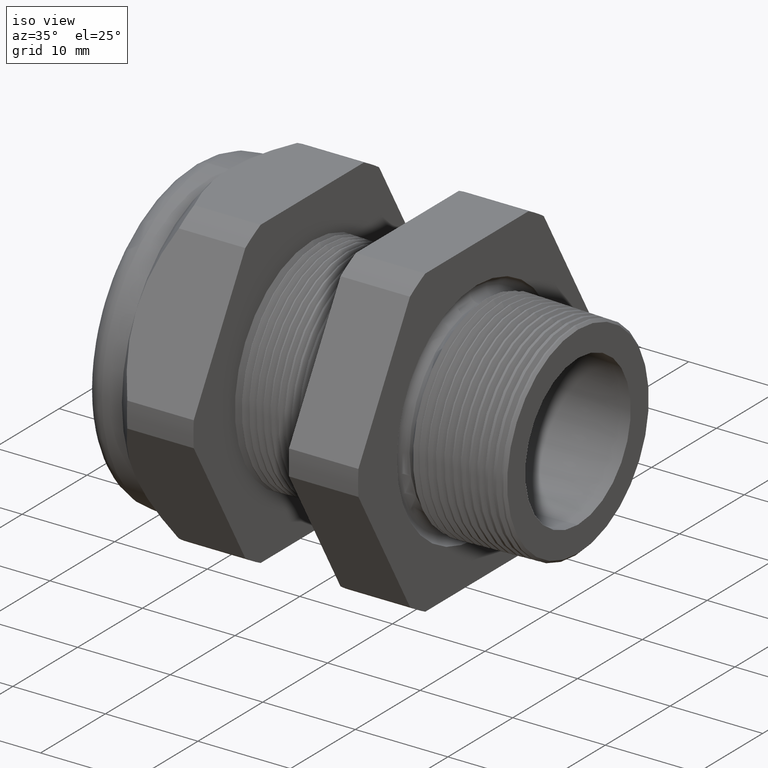
[diagram: clean part render]
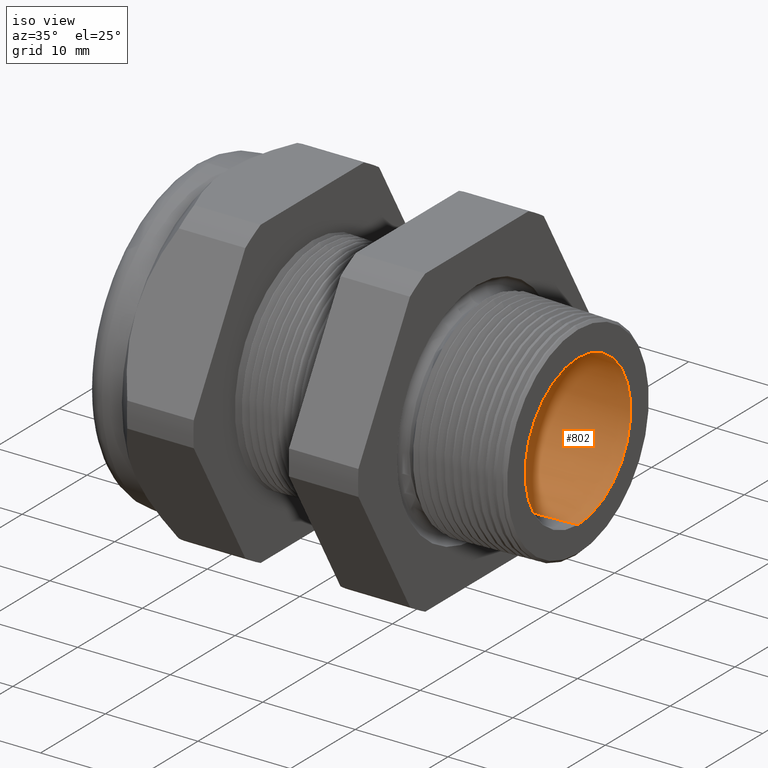
[diagram: same view with one face highlighted and labeled with its STEP entity id]
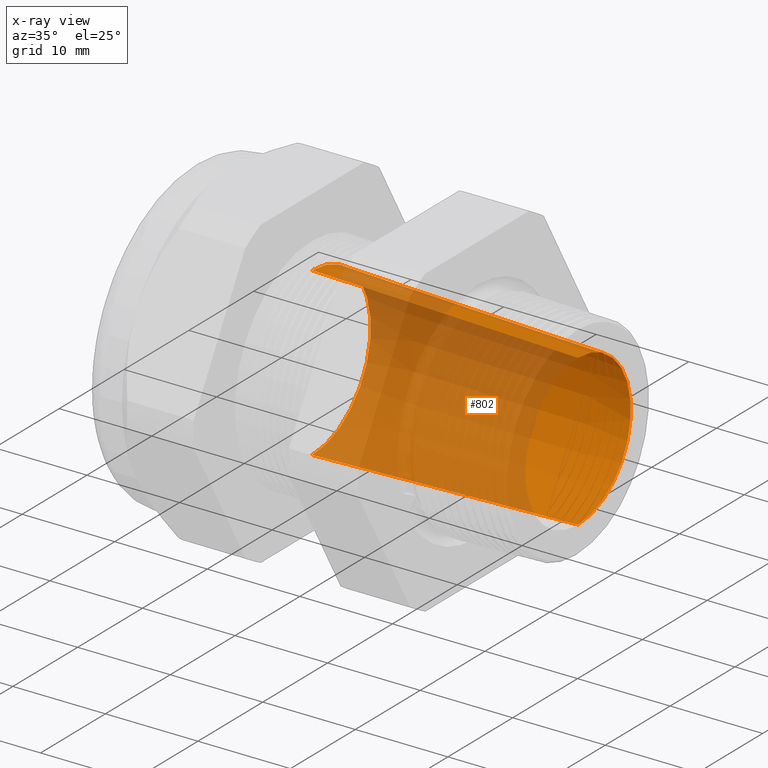
[diagram: x-ray of the same camera — body ghosted, the highlighted face saturated]
A machine part, iso view. The second image highlights one B-rep face of the part: STEP entity #802.
The next image is the same camera in x-ray: the body ghosted, the highlighted face saturated — about 69% of this face is hidden behind the body in this view.
In plain terms, the highlighted conical surface has half-angle 1.753 deg.
Its self-contained STEP definition (entity closure, byte-faithful):
#79 = VERTEX_POINT ( 'NONE', #1129 ) ;
#85 = EDGE_CURVE ( 'NONE', #5509, #79, #1178, .T. ) ;
#801 = EDGE_CURVE ( 'NONE', #5495, #79, #2614, .T. ) ;
#802 = ADVANCED_FACE ( 'NONE', ( #2615 ), #2607, .F. ) ;
#804 = EDGE_LOOP ( 'NONE', ( #838, #840, #844, #846 ) ) ;
#838 = ORIENTED_EDGE ( 'NONE', *, *, #5496, .F. ) ;
#840 = ORIENTED_EDGE ( 'NONE', *, *, #842, .T. ) ;
#842 = EDGE_CURVE ( 'NONE', #5507, #5509, #2669, .T. ) ;
#844 = ORIENTED_EDGE ( 'NONE', *, *, #85, .T. ) ;
#846 = ORIENTED_EDGE ( 'NONE', *, *, #801, .F. ) ;
#1129 = CARTESIAN_POINT ( 'NONE',  ( -1.010314960629921100, 4.347496136973103500E-017, 0.3549999999999999800 ) ) ;
#1175 = DIRECTION ( 'NONE',  ( -0.9995318591926351000, 0.0000000000000000000, 0.03059513783126741000 ) ) ;
#1176 = VECTOR ( 'NONE', #1175, 39.37007874015748900 ) ;
#1177 = CARTESIAN_POINT ( 'NONE',  ( -1.010314960629921100, 0.0000000000000000000, 0.3549999999999999800 ) ) ;
#1178 = LINE ( 'NONE', #1177, #1176 ) ;
#2604 = DIRECTION ( 'NONE',  ( 0.0000000000000000000, 0.0000000000000000000, 1.000000000000000000 ) ) ;
#2605 = DIRECTION ( 'NONE',  ( -1.000000000000000000, 0.0000000000000000000, 0.0000000000000000000 ) ) ;
#2606 = AXIS2_PLACEMENT_3D ( 'NONE', #2609, #2605, #2604 ) ;
#2607 = CONICAL_SURFACE ( 'NONE', #2606, 0.3549999999999999800, 0.03059991300296905500 ) ;
#2609 = CARTESIAN_POINT ( 'NONE',  ( -1.010314960629921100, 0.0000000000000000000, 0.0000000000000000000 ) ) ;
#2610 = DIRECTION ( 'NONE',  ( 0.0000000000000000000, 0.0000000000000000000, -1.000000000000000000 ) ) ;
#2611 = DIRECTION ( 'NONE',  ( 1.000000000000000000, 0.0000000000000000000, 0.0000000000000000000 ) ) ;
#2612 = CARTESIAN_POINT ( 'NONE',  ( -1.010314960629921100, 0.0000000000000000000, 0.0000000000000000000 ) ) ;
#2613 = AXIS2_PLACEMENT_3D ( 'NONE', #2612, #2611, #2610 ) ;
#2614 = CIRCLE ( 'NONE', #2613, 0.3549999999999999800 ) ;
#2615 = FACE_OUTER_BOUND ( 'NONE', #804, .T. ) ;
#2665 = DIRECTION ( 'NONE',  ( 0.0000000000000000000, 0.0000000000000000000, -1.000000000000000000 ) ) ;
#2666 = DIRECTION ( 'NONE',  ( 1.000000000000000000, 0.0000000000000000000, 0.0000000000000000000 ) ) ;
#2667 = CARTESIAN_POINT ( 'NONE',  ( 0.1200000000000000200, 0.0000000000000000000, 0.0000000000000000000 ) ) ;
#2668 = AXIS2_PLACEMENT_3D ( 'NONE', #2667, #2666, #2665 ) ;
#2669 = CIRCLE ( 'NONE', #2668, 0.3204016610924743100 ) ;
#4313 = CARTESIAN_POINT ( 'NONE',  ( 0.1200000000000000200, 0.0000000000000000000, 0.3204016610924743100 ) ) ;
#4320 = CARTESIAN_POINT ( 'NONE',  ( 0.1200000000000000200, 4.135642411978520400E-017, -0.3204016610924743100 ) ) ;
#4327 = DIRECTION ( 'NONE',  ( -0.9995318591926351000, 3.746823761453372400E-018, -0.03059513783126741000 ) ) ;
#4328 = VECTOR ( 'NONE', #4327, 39.37007874015748900 ) ;
#4329 = CARTESIAN_POINT ( 'NONE',  ( -1.010314960629921100, 4.347496136973103500E-017, -0.3549999999999999800 ) ) ;
#4330 = LINE ( 'NONE', #4329, #4328 ) ;
#4331 = CARTESIAN_POINT ( 'NONE',  ( -1.010314960629921100, 0.0000000000000000000, -0.3549999999999999800 ) ) ;
#5495 = VERTEX_POINT ( 'NONE', #4331 ) ;
#5496 = EDGE_CURVE ( 'NONE', #5507, #5495, #4330, .T. ) ;
#5507 = VERTEX_POINT ( 'NONE', #4320 ) ;
#5509 = VERTEX_POINT ( 'NONE', #4313 ) ;